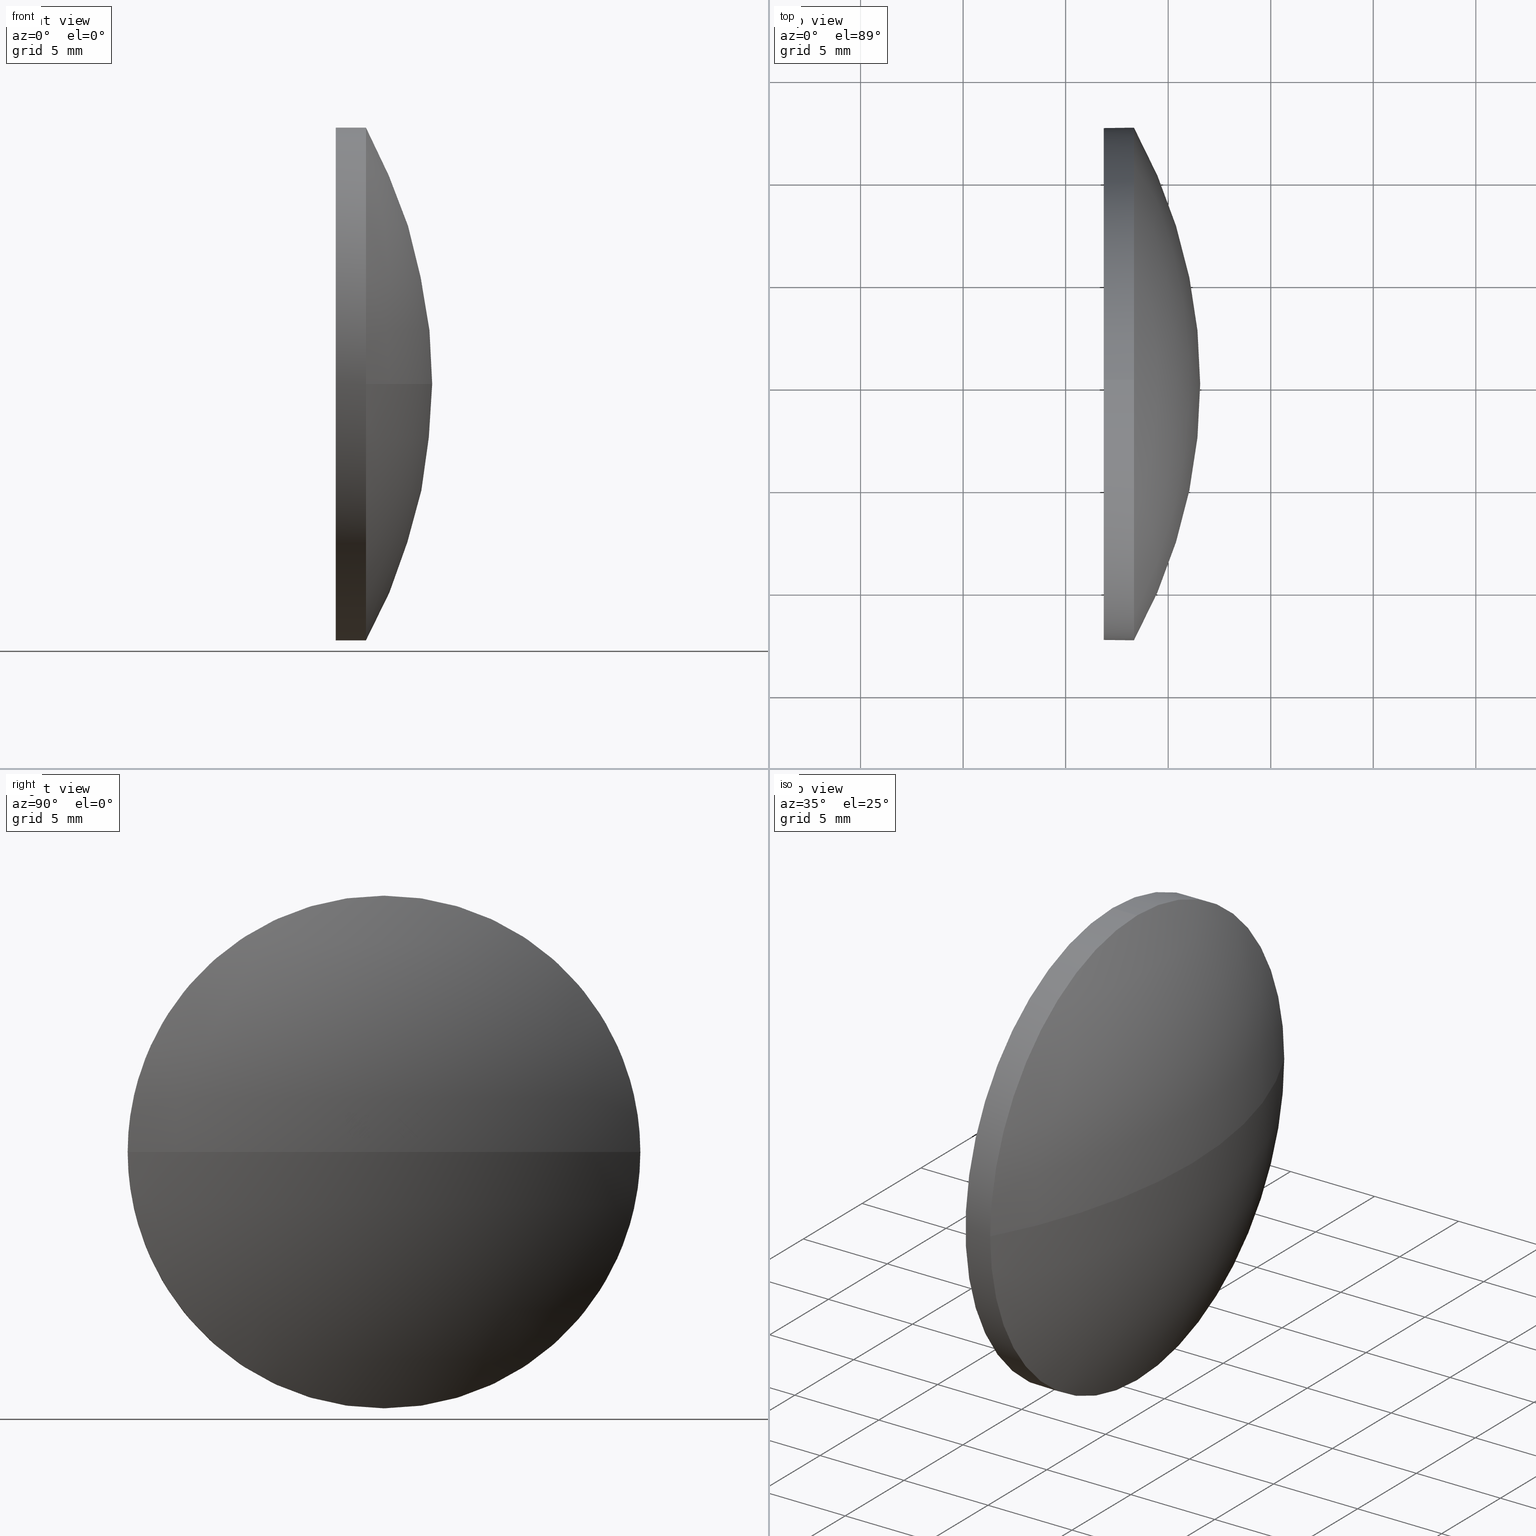
[diagram: canonical four-view strip — front | top / right | iso, engineering-drawing reading convention]
A machine part, canonical four-view strip (front | top / right | iso — engineering-drawing reading convention). The complete STEP part file that produces these views, byte-faithful:
ISO-10303-21;
HEADER;
FILE_DESCRIPTION (( 'STEP AP214' ),
    '1' );
FILE_NAME ('100212.STEP',
    '2019-05-23T07:53:56',
    ( '' ),
    ( '' ),
    'SwSTEP 2.0',
    'SolidWorks 2016',
    '' );
FILE_SCHEMA (( 'AUTOMOTIVE_DESIGN' ));
ENDSEC;

DATA;
#1 = CARTESIAN_POINT ( 'NONE',  ( 405.7577485575884000, -24.92783604908417100, 0.0000000000000000000 ) ) ;
#2 = DIRECTION ( 'NONE',  ( 1.000000000000000000, 0.0000000000000000000, 0.0000000000000000000 ) ) ;
#3 = DIRECTION ( 'NONE',  ( -1.000000000000000000, -0.0000000000000000000, -0.0000000000000000000 ) ) ;
#4 = AXIS2_PLACEMENT_3D ( 'NONE', #31, #2, #58 ) ;
#5 = MANIFOLD_SOLID_BREP ( '��ת1', #114 ) ;
#6 = EDGE_CURVE ( 'NONE', #173, #182, #127, .T. ) ;
#7 = CARTESIAN_POINT ( 'NONE',  ( 405.7577485575884000, -24.92783604908417100, 0.0000000000000000000 ) ) ;
#8 = FACE_OUTER_BOUND ( 'NONE', #87, .T. ) ;
#9 = CARTESIAN_POINT ( 'NONE',  ( 0.0000000000000000000, 0.0000000000000000000, 0.0000000000000000000 ) ) ;
#10 = DIRECTION ( 'NONE',  ( 0.0000000000000000000, 0.0000000000000000000, 1.000000000000000000 ) ) ;
#11 = DIRECTION ( 'NONE',  ( -1.000000000000000000, -0.0000000000000000000, -0.0000000000000000000 ) ) ;
#12 = SPHERICAL_SURFACE ( 'NONE', #110, 25.80230650154802400 ) ;
#13 = FACE_OUTER_BOUND ( 'NONE', #131, .T. ) ;
#14 = AXIS2_PLACEMENT_3D ( 'NONE', #159, #78, #116 ) ;
#15 = ORIENTED_EDGE ( 'NONE', *, *, #34, .F. ) ;
#16 = DIRECTION ( 'NONE',  ( -0.0000000000000000000, 0.0000000000000000000, 1.000000000000000000 ) ) ;
#17 = CARTESIAN_POINT ( 'NONE',  ( 405.7577485575884000, -24.92783604908417100, 0.0000000000000000000 ) ) ;
#18 = FACE_OUTER_BOUND ( 'NONE', #143, .T. ) ;
#19 = MECHANICAL_DESIGN_GEOMETRIC_PRESENTATION_REPRESENTATION (  '', ( #170 ), #40 ) ;
#20 = ADVANCED_FACE ( 'NONE', ( #18 ), #47, .T. ) ;
#21 = PRESENTATION_STYLE_ASSIGNMENT (( #141 ) ) ;
#22 = FILL_AREA_STYLE ('',( #149 ) ) ;
#23 = CARTESIAN_POINT ( 'NONE',  ( 426.8600550591363600, -24.92783604908413500, 12.49999999999999800 ) ) ;
#24 = APPLICATION_PROTOCOL_DEFINITION ( 'draft international standard', 'automotive_design', 1998, #167 ) ;
#25 = DIRECTION ( 'NONE',  ( -1.000000000000000000, -0.0000000000000000000, -0.0000000000000000000 ) ) ;
#26 = COLOUR_RGB ( '',1.000000000000000000, 1.000000000000000000, 1.000000000000000000 ) ;
#27 = CARTESIAN_POINT ( 'NONE',  ( 428.3300550591363800, -24.92783604908413500, 0.0000000000000000000 ) ) ;
#28 = DIRECTION ( 'NONE',  ( 0.0000000000000000000, 1.224646799147353200E-016, -1.000000000000000000 ) ) ;
#29 = VERTEX_POINT ( 'NONE', #88 ) ;
#30 = FACE_OUTER_BOUND ( 'NONE', #124, .T. ) ;
#31 = CARTESIAN_POINT ( 'NONE',  ( 426.8600550591363600, -24.92783604908413500, 0.0000000000000000000 ) ) ;
#32 = EDGE_CURVE ( 'NONE', #154, #164, #155, .T. ) ;
#33 = ORIENTED_EDGE ( 'NONE', *, *, #32, .F. ) ;
#34 = EDGE_CURVE ( 'NONE', #173, #154, #50, .T. ) ;
#35 = CARTESIAN_POINT ( 'NONE',  ( 424.8309474806993600, -24.92783604908413500, -12.49999999999999800 ) ) ;
#36 = DIRECTION ( 'NONE',  ( 0.0000000000000000000, 0.0000000000000000000, 1.000000000000000000 ) ) ;
#37 =( NAMED_UNIT ( * ) PLANE_ANGLE_UNIT ( ) SI_UNIT ( $, .RADIAN. ) );
#38 = UNCERTAINTY_MEASURE_WITH_UNIT (LENGTH_MEASURE( 1.000000000000000100E-005 ), #94, 'distance_accuracy_value', 'NONE');
#39 =( NAMED_UNIT ( * ) SI_UNIT ( $, .STERADIAN. ) SOLID_ANGLE_UNIT ( ) );
#40 =( GEOMETRIC_REPRESENTATION_CONTEXT ( 3 ) GLOBAL_UNCERTAINTY_ASSIGNED_CONTEXT ( ( #75 ) ) GLOBAL_UNIT_ASSIGNED_CONTEXT ( ( #61, #112, #84 ) ) REPRESENTATION_CONTEXT ( 'NONE', 'WORKASPACE' ) );
#41 = ORIENTED_EDGE ( 'NONE', *, *, #177, .T. ) ;
#42 = CYLINDRICAL_SURFACE ( 'NONE', #57, 12.49999999999999800 ) ;
#43 = DIRECTION ( 'NONE',  ( 0.0000000000000000000, 0.0000000000000000000, 1.000000000000000000 ) ) ;
#44 = PRESENTATION_LAYER_ASSIGNMENT (  '', '', ( #170 ) ) ;
#45 = PRODUCT_DEFINITION_FORMATION_WITH_SPECIFIED_SOURCE ( '�κ�', '', #79, .NOT_KNOWN. ) ;
#46 = CIRCLE ( 'NONE', #118, 12.49999999999999800 ) ;
#47 = CYLINDRICAL_SURFACE ( 'NONE', #169, 12.49999999999999800 ) ;
#48 = ADVANCED_FACE ( 'NONE', ( #13 ), #160, .T. ) ;
#49 = ORIENTED_EDGE ( 'NONE', *, *, #32, .T. ) ;
#50 = CIRCLE ( 'NONE', #65, 25.80230650154802400 ) ;
#51 = ADVANCED_FACE ( 'NONE', ( #8 ), #140, .F. ) ;
#52 = SURFACE_STYLE_USAGE ( .BOTH. , #133 ) ;
#53 = DIRECTION ( 'NONE',  ( 0.0000000000000000000, 0.0000000000000000000, 1.000000000000000000 ) ) ;
#54 = DIRECTION ( 'NONE',  ( 0.0000000000000000000, 0.0000000000000000000, 1.000000000000000000 ) ) ;
#55 = ORIENTED_EDGE ( 'NONE', *, *, #86, .F. ) ;
#56 = CARTESIAN_POINT ( 'NONE',  ( 424.8309474806993600, -24.92783604908413500, 12.49999999999999800 ) ) ;
#57 = AXIS2_PLACEMENT_3D ( 'NONE', #82, #183, #108 ) ;
#58 = DIRECTION ( 'NONE',  ( 0.0000000000000000000, 0.0000000000000000000, -1.000000000000000000 ) ) ;
#59 =( GEOMETRIC_REPRESENTATION_CONTEXT ( 3 ) GLOBAL_UNCERTAINTY_ASSIGNED_CONTEXT ( ( #38 ) ) GLOBAL_UNIT_ASSIGNED_CONTEXT ( ( #94, #37, #39 ) ) REPRESENTATION_CONTEXT ( 'NONE', 'WORKASPACE' ) );
#60 = PRODUCT_DEFINITION_SHAPE ( 'NONE', 'NONE',  #100 ) ;
#61 =( LENGTH_UNIT ( ) NAMED_UNIT ( * ) SI_UNIT ( .MILLI., .METRE. ) );
#62 = PRESENTATION_LAYER_ASSIGNMENT (  '', '', ( #171 ) ) ;
#63 = EDGE_CURVE ( 'NONE', #138, #154, #179, .T. ) ;
#64 = ADVANCED_FACE ( 'NONE', ( #158 ), #42, .T. ) ;
#65 = AXIS2_PLACEMENT_3D ( 'NONE', #1, #28, #156 ) ;
#66 = CARTESIAN_POINT ( 'NONE',  ( 428.3300550591363800, -12.42783604908413700, 0.0000000000000000000 ) ) ;
#67 = VECTOR ( 'NONE', #119, 1000.000000000000000 ) ;
#68 =( LENGTH_UNIT ( ) NAMED_UNIT ( * ) SI_UNIT ( .MILLI., .METRE. ) );
#69 =( NAMED_UNIT ( * ) PLANE_ANGLE_UNIT ( ) SI_UNIT ( $, .RADIAN. ) );
#70 = ORIENTED_EDGE ( 'NONE', *, *, #63, .F. ) ;
#71 = CARTESIAN_POINT ( 'NONE',  ( 428.3300550591363800, -24.92783604908413500, 0.0000000000000000000 ) ) ;
#72 = ORIENTED_EDGE ( 'NONE', *, *, #86, .T. ) ;
#73 = SURFACE_STYLE_FILL_AREA ( #175 ) ;
#74 =( GEOMETRIC_REPRESENTATION_CONTEXT ( 3 ) GLOBAL_UNCERTAINTY_ASSIGNED_CONTEXT ( ( #103 ) ) GLOBAL_UNIT_ASSIGNED_CONTEXT ( ( #68, #69, #135 ) ) REPRESENTATION_CONTEXT ( 'NONE', 'WORKASPACE' ) );
#75 = UNCERTAINTY_MEASURE_WITH_UNIT (LENGTH_MEASURE( 1.000000000000000100E-005 ), #61, 'distance_accuracy_value', 'NONE');
#76 = EDGE_CURVE ( 'NONE', #182, #138, #115, .T. ) ;
#77 = PRODUCT_RELATED_PRODUCT_CATEGORY ( 'part', '', ( #79 ) ) ;
#78 = DIRECTION ( 'NONE',  ( -0.0000000000000000000, 0.0000000000000000000, -1.000000000000000000 ) ) ;
#79 = PRODUCT ( '100212', '100212', '', ( #180 ) ) ;
#80 = CIRCLE ( 'NONE', #90, 12.49999999999999800 ) ;
#81 = CARTESIAN_POINT ( 'NONE',  ( 428.3300550591363800, -24.92783604908413500, 0.0000000000000000000 ) ) ;
#82 = CARTESIAN_POINT ( 'NONE',  ( 424.8309474806993600, -24.92783604908413500, 0.0000000000000000000 ) ) ;
#83 = AXIS2_PLACEMENT_3D ( 'NONE', #17, #16, #161 ) ;
#84 =( NAMED_UNIT ( * ) SI_UNIT ( $, .STERADIAN. ) SOLID_ANGLE_UNIT ( ) );
#85 = ORIENTED_EDGE ( 'NONE', *, *, #147, .T. ) ;
#86 = EDGE_CURVE ( 'NONE', #164, #182, #46, .T. ) ;
#87 = EDGE_LOOP ( 'NONE', ( #85, #178 ) ) ;
#88 = CARTESIAN_POINT ( 'NONE',  ( 426.8600550591363600, -24.92783604908413500, -12.49999999999999800 ) ) ;
#89 = CIRCLE ( 'NONE', #96, 12.49999999999999800 ) ;
#90 = AXIS2_PLACEMENT_3D ( 'NONE', #184, #150, #53 ) ;
#91 = ORIENTED_EDGE ( 'NONE', *, *, #137, .T. ) ;
#92 = DIRECTION ( 'NONE',  ( 0.0000000000000000000, 0.0000000000000000000, 1.000000000000000000 ) ) ;
#93 = PRODUCT_DEFINITION_CONTEXT ( 'detailed design', #97, 'design' ) ;
#94 =( LENGTH_UNIT ( ) NAMED_UNIT ( * ) SI_UNIT ( .MILLI., .METRE. ) );
#95 = CARTESIAN_POINT ( 'NONE',  ( 428.3300550591363800, -24.92783604908413500, 12.49999999999999800 ) ) ;
#96 = AXIS2_PLACEMENT_3D ( 'NONE', #165, #151, #92 ) ;
#97 = APPLICATION_CONTEXT ( 'automotive_design' ) ;
#98 = ORIENTED_EDGE ( 'NONE', *, *, #128, .F. ) ;
#99 = AXIS2_PLACEMENT_3D ( 'NONE', #27, #101, #43 ) ;
#100 = PRODUCT_DEFINITION ( 'δ֪', '', #45, #93 ) ;
#101 = DIRECTION ( 'NONE',  ( -1.000000000000000000, -0.0000000000000000000, -0.0000000000000000000 ) ) ;
#102 = ORIENTED_EDGE ( 'NONE', *, *, #76, .F. ) ;
#103 = UNCERTAINTY_MEASURE_WITH_UNIT (LENGTH_MEASURE( 1.000000000000000100E-005 ), #68, 'distance_accuracy_value', 'NONE');
#104 = PRESENTATION_STYLE_ASSIGNMENT (( #52 ) ) ;
#105 = DIRECTION ( 'NONE',  ( -0.0000000000000000000, 0.0000000000000000000, -1.000000000000000000 ) ) ;
#106 = DIRECTION ( 'NONE',  ( 1.000000000000000000, 0.0000000000000000000, 0.0000000000000000000 ) ) ;
#107 = AXIS2_PLACEMENT_3D ( 'NONE', #81, #121, #36 ) ;
#108 = DIRECTION ( 'NONE',  ( 0.0000000000000000000, 0.0000000000000000000, 1.000000000000000000 ) ) ;
#109 = ORIENTED_EDGE ( 'NONE', *, *, #6, .T. ) ;
#110 = AXIS2_PLACEMENT_3D ( 'NONE', #7, #105, #153 ) ;
#111 = FILL_AREA_STYLE_COLOUR ( '', #26 ) ;
#112 =( NAMED_UNIT ( * ) PLANE_ANGLE_UNIT ( ) SI_UNIT ( $, .RADIAN. ) );
#113 = CARTESIAN_POINT ( 'NONE',  ( 424.8309474806993600, -24.92783604908413500, 0.0000000000000000000 ) ) ;
#114 = CLOSED_SHELL ( 'NONE', ( #64, #48, #120, #20, #51 ) ) ;
#115 = CIRCLE ( 'NONE', #107, 12.49999999999999800 ) ;
#116 = DIRECTION ( 'NONE',  ( 0.0000000000000000000, 1.000000000000000000, 0.0000000000000000000 ) ) ;
#117 = ORIENTED_EDGE ( 'NONE', *, *, #76, .T. ) ;
#118 = AXIS2_PLACEMENT_3D ( 'NONE', #71, #152, #123 ) ;
#119 = DIRECTION ( 'NONE',  ( -1.000000000000000000, -0.0000000000000000000, -0.0000000000000000000 ) ) ;
#120 = ADVANCED_FACE ( 'NONE', ( #30 ), #12, .T. ) ;
#121 = DIRECTION ( 'NONE',  ( -1.000000000000000000, -0.0000000000000000000, -0.0000000000000000000 ) ) ;
#122 = CARTESIAN_POINT ( 'NONE',  ( 428.3300550591363800, -24.92783604908413500, 0.0000000000000000000 ) ) ;
#123 = DIRECTION ( 'NONE',  ( 0.0000000000000000000, 0.0000000000000000000, 1.000000000000000000 ) ) ;
#124 = EDGE_LOOP ( 'NONE', ( #15, #109, #55, #33 ) ) ;
#125 = ORIENTED_EDGE ( 'NONE', *, *, #137, .F. ) ;
#126 = SURFACE_SIDE_STYLE ('',( #73 ) ) ;
#127 = CIRCLE ( 'NONE', #83, 25.80230650154802400 ) ;
#128 = EDGE_CURVE ( 'NONE', #29, #134, #80, .T. ) ;
#129 = ORIENTED_EDGE ( 'NONE', *, *, #6, .F. ) ;
#130 = AXIS2_PLACEMENT_3D ( 'NONE', #122, #25, #54 ) ;
#131 = EDGE_LOOP ( 'NONE', ( #129, #176, #70, #102 ) ) ;
#132 = CARTESIAN_POINT ( 'NONE',  ( 431.5600550591364000, -24.92783604908417100, 0.0000000000000000000 ) ) ;
#133 = SURFACE_SIDE_STYLE ('',( #142 ) ) ;
#134 = VERTEX_POINT ( 'NONE', #23 ) ;
#135 =( NAMED_UNIT ( * ) SI_UNIT ( $, .STERADIAN. ) SOLID_ANGLE_UNIT ( ) );
#136 = CARTESIAN_POINT ( 'NONE',  ( 428.3300550591363800, -24.92783604908413500, -12.49999999999999800 ) ) ;
#137 = EDGE_CURVE ( 'NONE', #138, #29, #139, .T. ) ;
#138 = VERTEX_POINT ( 'NONE', #136 ) ;
#139 = LINE ( 'NONE', #35, #67 ) ;
#140 = PLANE ( 'NONE',  #4 ) ;
#141 = SURFACE_STYLE_USAGE ( .BOTH. , #126 ) ;
#142 = SURFACE_STYLE_FILL_AREA ( #22 ) ;
#143 = EDGE_LOOP ( 'NONE', ( #125, #168, #49, #41, #98 ) ) ;
#144 = LINE ( 'NONE', #56, #174 ) ;
#145 = DIRECTION ( 'NONE',  ( 0.0000000000000000000, 0.0000000000000000000, 1.000000000000000000 ) ) ;
#146 = AXIS2_PLACEMENT_3D ( 'NONE', #9, #10, #106 ) ;
#147 = EDGE_CURVE ( 'NONE', #134, #29, #89, .T. ) ;
#148 = EDGE_LOOP ( 'NONE', ( #117, #91, #162, #185, #72 ) ) ;
#149 = FILL_AREA_STYLE_COLOUR ( '', #172 ) ;
#150 = DIRECTION ( 'NONE',  ( -1.000000000000000000, -0.0000000000000000000, -0.0000000000000000000 ) ) ;
#151 = DIRECTION ( 'NONE',  ( -1.000000000000000000, -0.0000000000000000000, -0.0000000000000000000 ) ) ;
#152 = DIRECTION ( 'NONE',  ( -1.000000000000000000, -0.0000000000000000000, -0.0000000000000000000 ) ) ;
#153 = DIRECTION ( 'NONE',  ( 0.0000000000000000000, 1.000000000000000000, 0.0000000000000000000 ) ) ;
#154 = VERTEX_POINT ( 'NONE', #166 ) ;
#155 = CIRCLE ( 'NONE', #99, 12.49999999999999800 ) ;
#156 = DIRECTION ( 'NONE',  ( 0.0000000000000000000, 1.000000000000000000, 1.224646799147353200E-016 ) ) ;
#157 = ADVANCED_BREP_SHAPE_REPRESENTATION ( '100212', ( #5, #146 ), #59 ) ;
#158 = FACE_OUTER_BOUND ( 'NONE', #148, .T. ) ;
#159 = CARTESIAN_POINT ( 'NONE',  ( 405.7577485575884000, -24.92783604908417100, 0.0000000000000000000 ) ) ;
#160 = SPHERICAL_SURFACE ( 'NONE', #14, 25.80230650154802400 ) ;
#161 = DIRECTION ( 'NONE',  ( 1.000000000000000000, 0.0000000000000000000, 0.0000000000000000000 ) ) ;
#162 = ORIENTED_EDGE ( 'NONE', *, *, #147, .F. ) ;
#163 = SHAPE_DEFINITION_REPRESENTATION ( #60, #157 ) ;
#164 = VERTEX_POINT ( 'NONE', #95 ) ;
#165 = CARTESIAN_POINT ( 'NONE',  ( 426.8600550591363600, -24.92783604908413500, 0.0000000000000000000 ) ) ;
#166 = CARTESIAN_POINT ( 'NONE',  ( 428.3300550591363800, -37.42783604908416400, -1.530808498934191100E-015 ) ) ;
#167 = APPLICATION_CONTEXT ( 'automotive_design' ) ;
#168 = ORIENTED_EDGE ( 'NONE', *, *, #63, .T. ) ;
#169 = AXIS2_PLACEMENT_3D ( 'NONE', #113, #3, #145 ) ;
#170 = STYLED_ITEM ( 'NONE', ( #21 ), #5 ) ;
#171 = STYLED_ITEM ( 'NONE', ( #104 ), #157 ) ;
#172 = COLOUR_RGB ( '',1.000000000000000000, 1.000000000000000000, 1.000000000000000000 ) ;
#173 = VERTEX_POINT ( 'NONE', #132 ) ;
#174 = VECTOR ( 'NONE', #11, 1000.000000000000000 ) ;
#175 = FILL_AREA_STYLE ('',( #111 ) ) ;
#176 = ORIENTED_EDGE ( 'NONE', *, *, #34, .T. ) ;
#177 = EDGE_CURVE ( 'NONE', #164, #134, #144, .T. ) ;
#178 = ORIENTED_EDGE ( 'NONE', *, *, #128, .T. ) ;
#179 = CIRCLE ( 'NONE', #130, 12.49999999999999800 ) ;
#180 = PRODUCT_CONTEXT ( 'NONE', #167, 'mechanical' ) ;
#181 = MECHANICAL_DESIGN_GEOMETRIC_PRESENTATION_REPRESENTATION (  '', ( #171 ), #74 ) ;
#182 = VERTEX_POINT ( 'NONE', #66 ) ;
#183 = DIRECTION ( 'NONE',  ( -1.000000000000000000, -0.0000000000000000000, -0.0000000000000000000 ) ) ;
#184 = CARTESIAN_POINT ( 'NONE',  ( 426.8600550591363600, -24.92783604908413500, 0.0000000000000000000 ) ) ;
#185 = ORIENTED_EDGE ( 'NONE', *, *, #177, .F. ) ;
#186 = APPLICATION_PROTOCOL_DEFINITION ( 'draft international standard', 'automotive_design', 1998, #97 ) ;
ENDSEC;
END-ISO-10303-21;
